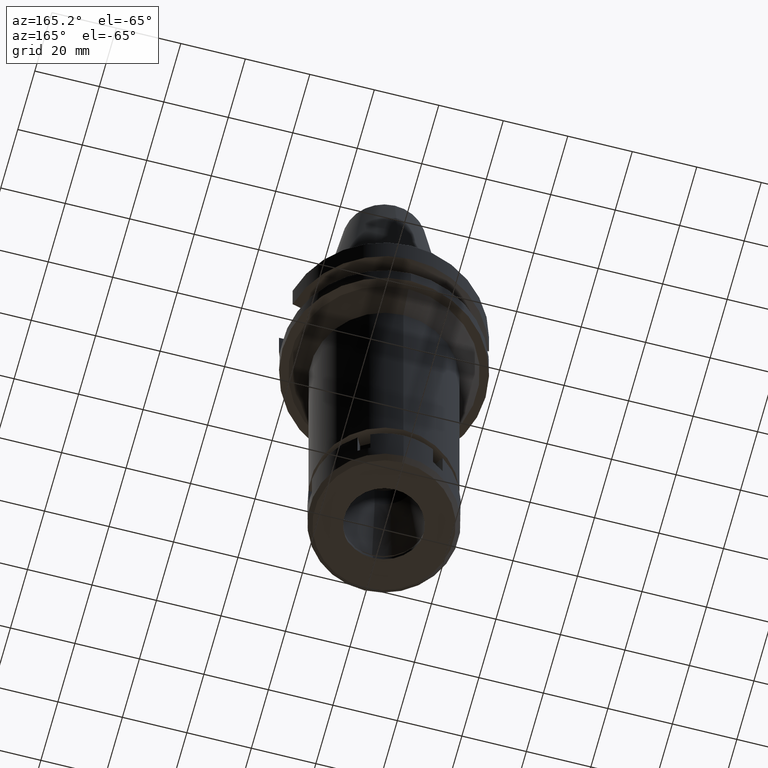
[diagram: clean part render]
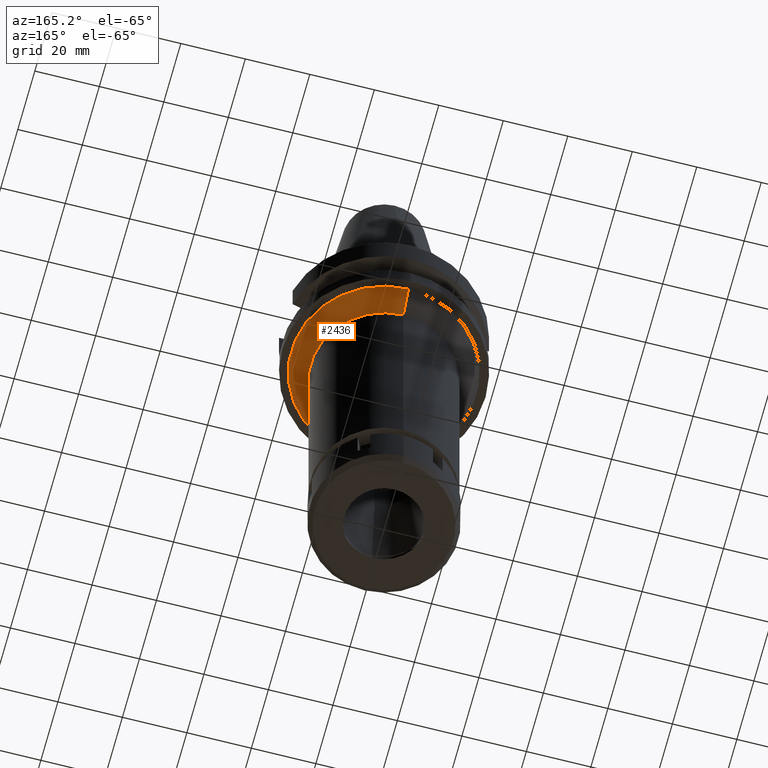
[diagram: same view with one face highlighted and labeled with its STEP entity id]
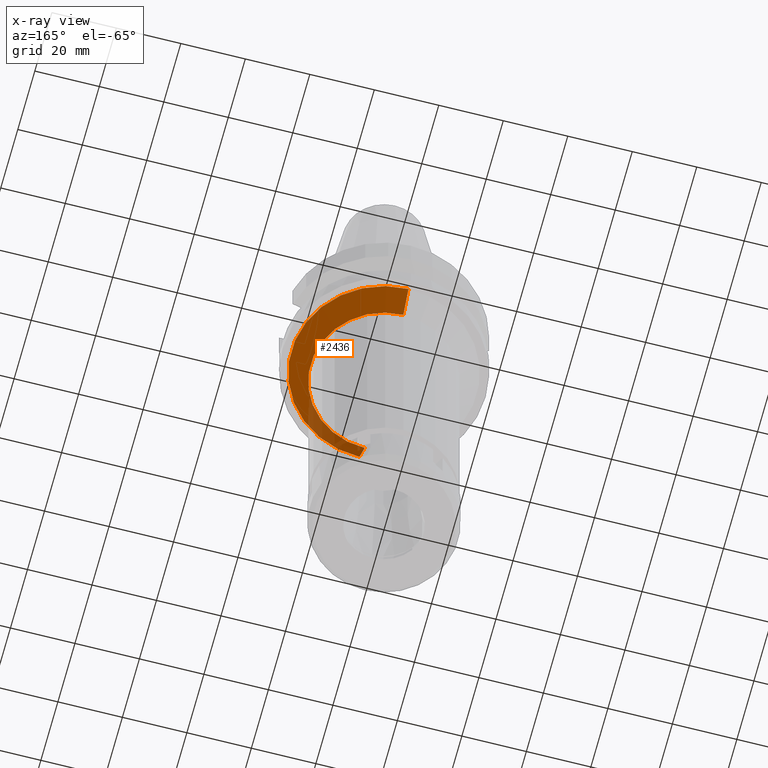
[diagram: x-ray of the same camera — body ghosted, the highlighted face saturated]
A machine part, auxiliary view. The second image highlights one B-rep face of the part: STEP entity #2436.
The next image is the same camera in x-ray: the body ghosted, the highlighted face saturated — about 16% of this face is hidden behind the body in this view.
In plain terms, the highlighted conical surface has half-angle 45 deg.
Its self-contained STEP definition (entity closure, byte-faithful):
#18 = ORIENTED_EDGE ( 'NONE', *, *, #1691, .T. ) ;
#118 = VECTOR ( 'NONE', #1280, 1000.000000000000114 ) ;
#261 = LINE ( 'NONE', #1699, #767 ) ;
#273 = VERTEX_POINT ( 'NONE', #1631 ) ;
#308 = EDGE_CURVE ( 'NONE', #273, #2479, #261, .T. ) ;
#360 = EDGE_LOOP ( 'NONE', ( #1215, #18, #2785, #1657 ) ) ;
#396 = LINE ( 'NONE', #2340, #118 ) ;
#606 = CARTESIAN_POINT ( 'NONE',  ( 0.0000000000000000000, 0.0000000000000000000, -27.00000000000000000 ) ) ;
#767 = VECTOR ( 'NONE', #2210, 1000.000000000000114 ) ;
#833 = CIRCLE ( 'NONE', #3055, 22.75000000000000000 ) ;
#925 = DIRECTION ( 'NONE',  ( 0.0000000000000000000, 0.0000000000000000000, 1.000000000000000000 ) ) ;
#951 = EDGE_CURVE ( 'NONE', #273, #2474, #3524, .T. ) ;
#1215 = ORIENTED_EDGE ( 'NONE', *, *, #951, .T. ) ;
#1252 = FACE_OUTER_BOUND ( 'NONE', #360, .T. ) ;
#1276 = EDGE_CURVE ( 'NONE', #2479, #3263, #833, .T. ) ;
#1280 = DIRECTION ( 'NONE',  ( 0.0000000000000000000, 0.7071067811865474617, -0.7071067811865474617 ) ) ;
#1454 = DIRECTION ( 'NONE',  ( 0.0000000000000000000, 1.000000000000000000, 0.0000000000000000000 ) ) ;
#1631 = CARTESIAN_POINT ( 'NONE',  ( 0.0000000000000000000, 28.75000000000000000, -27.00000000000000000 ) ) ;
#1657 = ORIENTED_EDGE ( 'NONE', *, *, #308, .F. ) ;
#1691 = EDGE_CURVE ( 'NONE', #2474, #3263, #396, .T. ) ;
#1699 = CARTESIAN_POINT ( 'NONE',  ( 0.0000000000000000000, 28.75000000000000000, -27.00000000000000000 ) ) ;
#1806 = CARTESIAN_POINT ( 'NONE',  ( 0.0000000000000000000, 0.0000000000000000000, -33.00000000000000000 ) ) ;
#1872 = CARTESIAN_POINT ( 'NONE',  ( 0.0000000000000000000, 22.75000000000000000, -33.00000000000000000 ) ) ;
#1936 = AXIS2_PLACEMENT_3D ( 'NONE', #606, #2838, #2270 ) ;
#2210 = DIRECTION ( 'NONE',  ( 0.0000000000000000000, -0.7071067811865474617, -0.7071067811865474617 ) ) ;
#2270 = DIRECTION ( 'NONE',  ( 0.0000000000000000000, 1.000000000000000000, 0.0000000000000000000 ) ) ;
#2340 = CARTESIAN_POINT ( 'NONE',  ( 0.0000000000000000000, -28.75000000000000000, -27.00000000000000000 ) ) ;
#2363 = DIRECTION ( 'NONE',  ( 0.0000000000000000000, 0.0000000000000000000, -1.000000000000000000 ) ) ;
#2436 = ADVANCED_FACE ( 'NONE', ( #1252 ), #2579, .T. ) ;
#2474 = VERTEX_POINT ( 'NONE', #2991 ) ;
#2479 = VERTEX_POINT ( 'NONE', #1872 ) ;
#2566 = CARTESIAN_POINT ( 'NONE',  ( 0.0000000000000000000, 0.0000000000000000000, -30.00000000000000000 ) ) ;
#2579 = CONICAL_SURFACE ( 'NONE', #3584, 25.75000000000000000, 0.7853981633972997312 ) ;
#2785 = ORIENTED_EDGE ( 'NONE', *, *, #1276, .F. ) ;
#2814 = CARTESIAN_POINT ( 'NONE',  ( 0.0000000000000000000, -22.75000000000000000, -33.00000000000000000 ) ) ;
#2838 = DIRECTION ( 'NONE',  ( 0.0000000000000000000, 0.0000000000000000000, -1.000000000000000000 ) ) ;
#2991 = CARTESIAN_POINT ( 'NONE',  ( 0.0000000000000000000, -28.75000000000000000, -27.00000000000000000 ) ) ;
#3055 = AXIS2_PLACEMENT_3D ( 'NONE', #1806, #2363, #3492 ) ;
#3263 = VERTEX_POINT ( 'NONE', #2814 ) ;
#3492 = DIRECTION ( 'NONE',  ( 0.0000000000000000000, 1.000000000000000000, 0.0000000000000000000 ) ) ;
#3524 = CIRCLE ( 'NONE', #1936, 28.75000000000000000 ) ;
#3584 = AXIS2_PLACEMENT_3D ( 'NONE', #2566, #925, #1454 ) ;